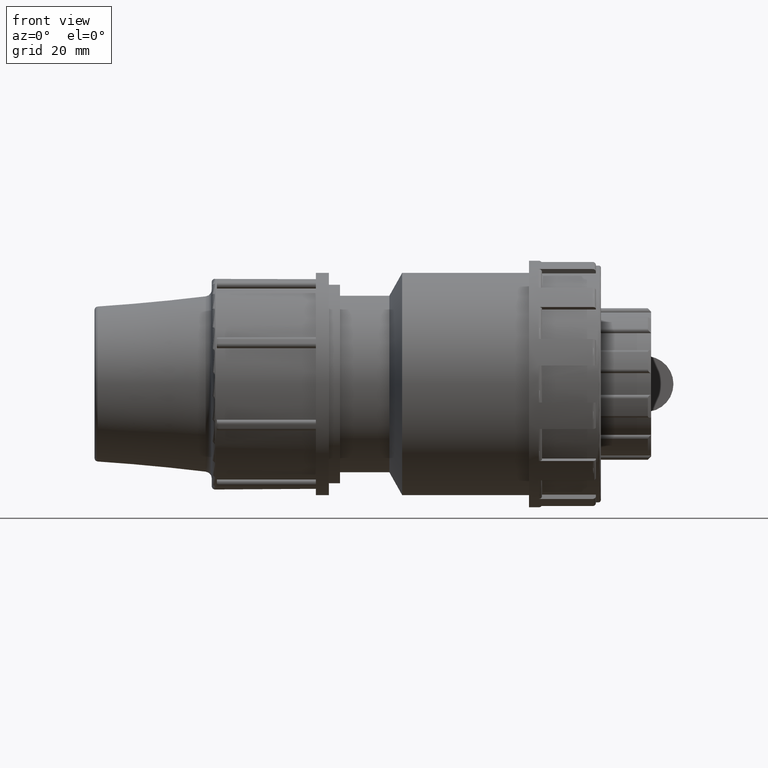
[diagram: clean part render]
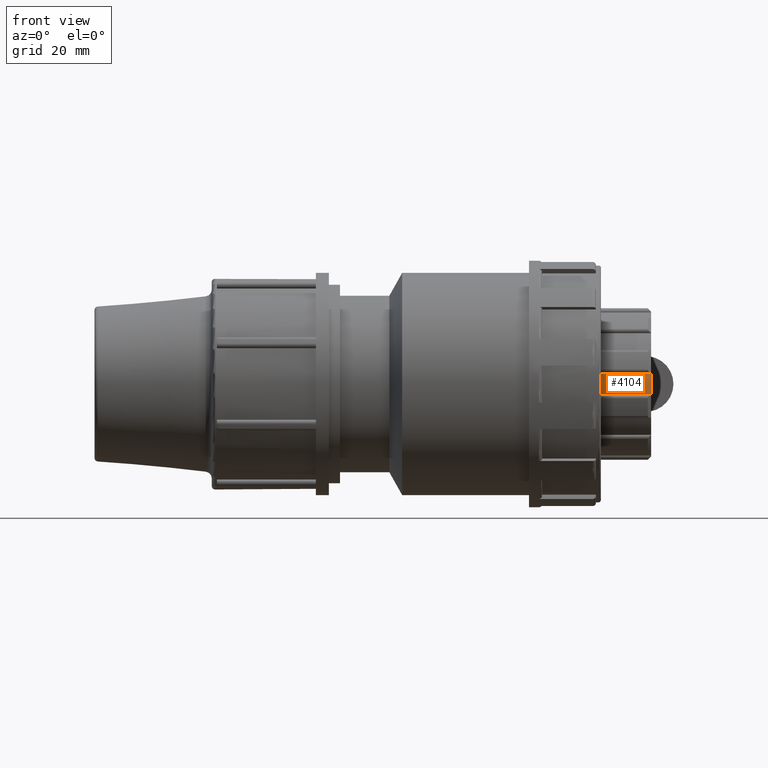
[diagram: same view with one face highlighted and labeled with its STEP entity id]
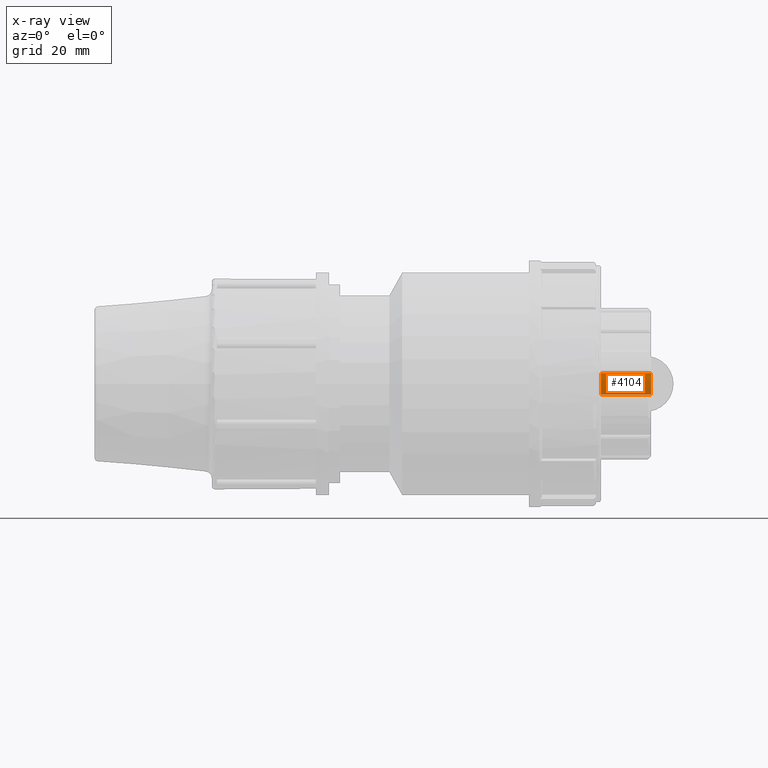
[diagram: x-ray of the same camera — body ghosted, the highlighted face saturated]
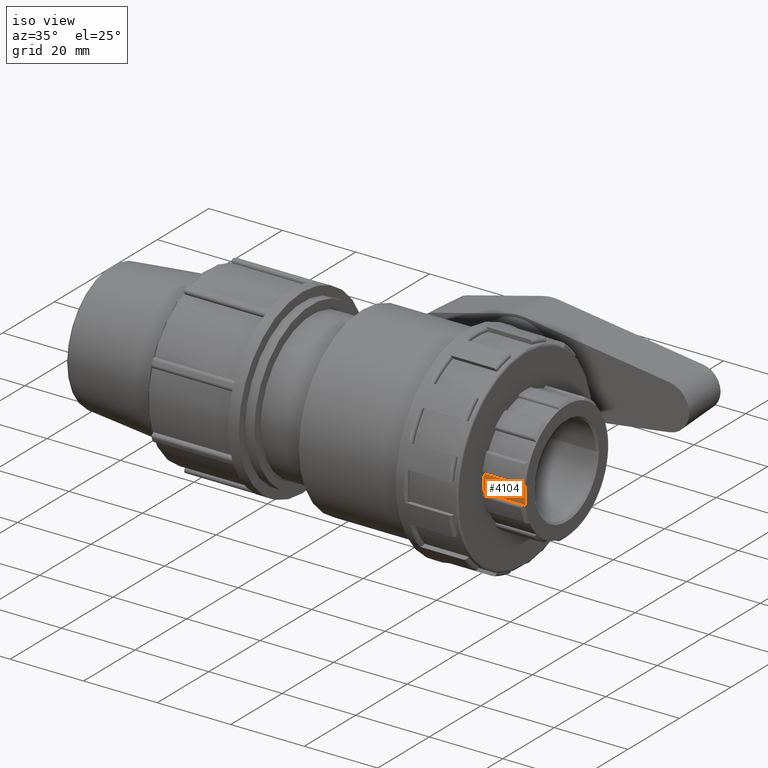
[diagram: same view with one face highlighted and labeled with its STEP entity id]
A machine part, front view. The second image highlights one B-rep face of the part: STEP entity #4104.
The next image is the same camera in x-ray: the body ghosted, the highlighted face saturated — about 0% of this face is hidden behind the body in this view.
A second angle (iso view) of the same face is appended — the face is thin or edge-on in the first view.
In plain terms, the highlighted cylindrical surface (partial cylindrical patch) has radius 16.1584 mm, axis along (-1, 0, 0).
Its self-contained STEP definition (entity closure, byte-faithful):
#452=FACE_OUTER_BOUND('',#708,.T.);
#708=EDGE_LOOP('',(#3206,#3207,#3208,#3209));
#967=LINE('',#7255,#1211);
#969=LINE('',#7275,#1213);
#1211=VECTOR('',#5193,11.2);
#1213=VECTOR('',#5199,11.2);
#1484=CIRCLE('',#4465,16.15839);
#1485=CIRCLE('',#4466,16.15839);
#1795=VERTEX_POINT('',#7236);
#1797=VERTEX_POINT('',#7253);
#1798=VERTEX_POINT('',#7257);
#1801=VERTEX_POINT('',#7262);
#2291=EDGE_CURVE('',#1795,#1797,#967,.T.);
#2295=EDGE_CURVE('',#1801,#1798,#969,.T.);
#2347=EDGE_CURVE('',#1801,#1795,#1484,.T.);
#2348=EDGE_CURVE('',#1797,#1798,#1485,.T.);
#3206=ORIENTED_EDGE('',*,*,#2347,.T.);
#3207=ORIENTED_EDGE('',*,*,#2291,.T.);
#3208=ORIENTED_EDGE('',*,*,#2348,.T.);
#3209=ORIENTED_EDGE('',*,*,#2295,.F.);
#3959=CYLINDRICAL_SURFACE('',#4464,16.15839);
#4104=ADVANCED_FACE('',(#452),#3959,.T.);
#4464=AXIS2_PLACEMENT_3D('',#7466,#5303,#5304);
#4465=AXIS2_PLACEMENT_3D('',#7467,#5305,#5306);
#4466=AXIS2_PLACEMENT_3D('',#7468,#5307,#5308);
#5193=DIRECTION('',(-1.,0.,0.));
#5199=DIRECTION('',(-1.,0.,0.));
#5303=DIRECTION('center_axis',(-1.,0.,0.));
#5304=DIRECTION('ref_axis',(0.,2.06126295619518E-16,-1.));
#5305=DIRECTION('center_axis',(-1.,0.,0.));
#5306=DIRECTION('ref_axis',(0.,-1.,0.));
#5307=DIRECTION('center_axis',(1.,0.,0.));
#5308=DIRECTION('ref_axis',(0.,2.06126295619518E-16,-1.));
#7236=CARTESIAN_POINT('',(41.3333333333333,-15.9773987401611,2.41169999999999));
#7253=CARTESIAN_POINT('',(30.1333333333333,-15.9773987401611,2.41169999999999));
#7255=CARTESIAN_POINT('',(41.3333333333333,-15.9773987401611,2.41169999999999));
#7257=CARTESIAN_POINT('',(30.1333333333333,-15.9773987401611,-2.41170000000001));
#7262=CARTESIAN_POINT('',(41.3333333333333,-15.9773987401611,-2.41170000000001));
#7275=CARTESIAN_POINT('',(41.3333333333333,-15.9773987401611,-2.41170000000001));
#7466=CARTESIAN_POINT('Origin',(41.3333333333333,0.,0.));
#7467=CARTESIAN_POINT('Origin',(41.3333333333333,0.,0.));
#7468=CARTESIAN_POINT('Origin',(30.1333333333333,0.,0.));